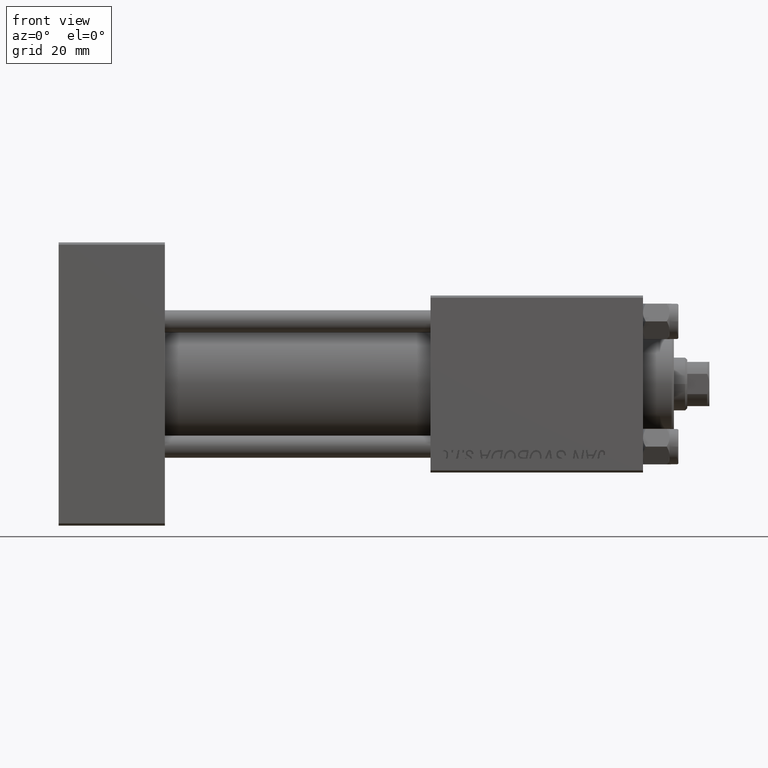
[diagram: clean part render]
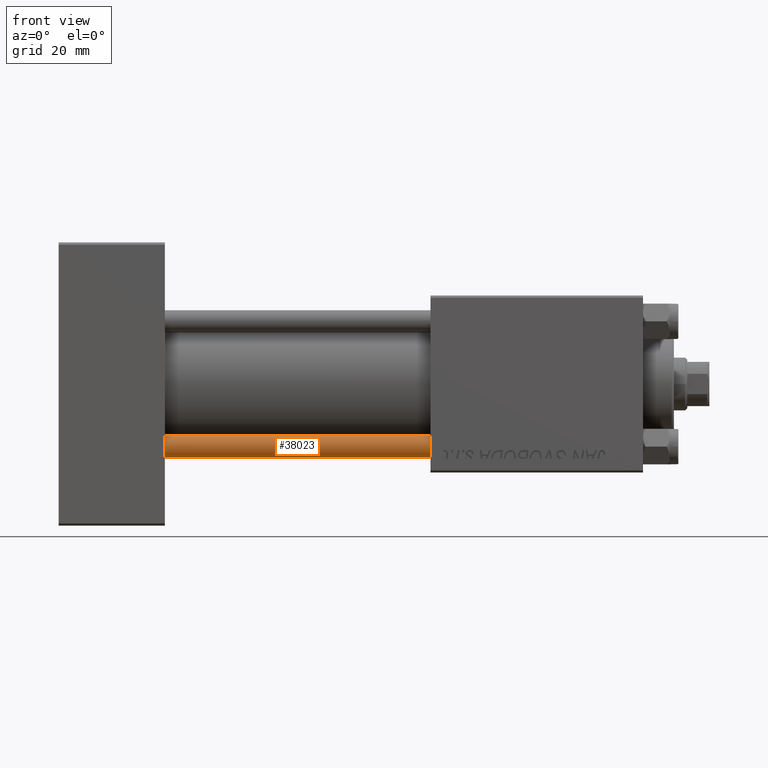
[diagram: same view with one face highlighted and labeled with its STEP entity id]
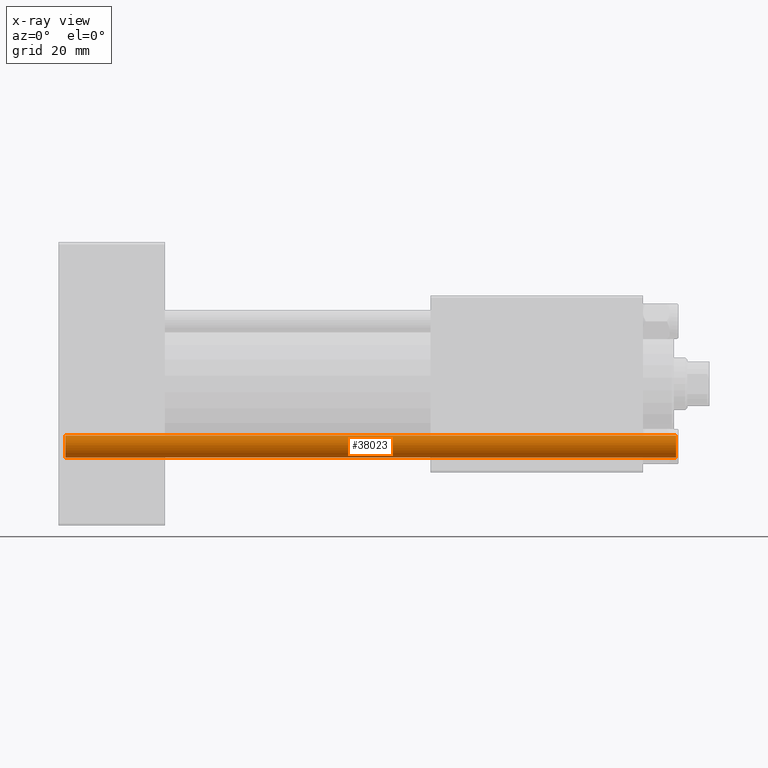
[diagram: x-ray of the same camera — body ghosted, the highlighted face saturated]
A machine part, front view. The second image highlights one B-rep face of the part: STEP entity #38023.
The next image is the same camera in x-ray: the body ghosted, the highlighted face saturated — about 0% of this face is hidden behind the body in this view.
In plain terms, the highlighted cylindrical surface (edge-blend (fillet) strip) has radius 2.5 mm, axis along (1, -0, -0).
Its self-contained STEP definition (entity closure, byte-faithful):
#3253 = CYLINDRICAL_SURFACE ( 'NONE', #16184, 2.500000000000000000 ) ;
#4289 = VERTEX_POINT ( 'NONE', #15531 ) ;
#4549 = VECTOR ( 'NONE', #20001, 1000.000000000000000 ) ;
#4597 = CARTESIAN_POINT ( 'NONE',  ( -2.500000000000000000, 0.000000000000000000, 139.0000000000000000 ) ) ;
#4831 = VERTEX_POINT ( 'NONE', #16691 ) ;
#5740 = EDGE_CURVE ( 'NONE', #4831, #4289, #39675, .T. ) ;
#5862 = AXIS2_PLACEMENT_3D ( 'NONE', #36293, #40576, #32514 ) ;
#6580 = EDGE_CURVE ( 'NONE', #12872, #13781, #35899, .T. ) ;
#10327 = EDGE_LOOP ( 'NONE', ( #18568, #22418, #37246, #40165 ) ) ;
#10352 = DIRECTION ( 'NONE',  ( 0.000000000000000000, 0.000000000000000000, -1.000000000000000000 ) ) ;
#10846 = DIRECTION ( 'NONE',  ( -0.000000000000000000, -0.000000000000000000, -1.000000000000000000 ) ) ;
#11357 = DIRECTION ( 'NONE',  ( 1.000000000000000000, 0.000000000000000000, 0.000000000000000000 ) ) ;
#12872 = VERTEX_POINT ( 'NONE', #17877 ) ;
#13781 = VERTEX_POINT ( 'NONE', #14588 ) ;
#14588 = CARTESIAN_POINT ( 'NONE',  ( -2.500000000000000000, 0.000000000000000000, 0.4999999999999726885 ) ) ;
#14868 = FACE_OUTER_BOUND ( 'NONE', #10327, .T. ) ;
#15368 = DIRECTION ( 'NONE',  ( -1.000000000000000000, 0.000000000000000000, 0.000000000000000000 ) ) ;
#15531 = CARTESIAN_POINT ( 'NONE',  ( 2.500000000000000000, 3.061616997868383141E-16, 0.4999999999999726885 ) ) ;
#16184 = AXIS2_PLACEMENT_3D ( 'NONE', #34815, #10846, #15368 ) ;
#16691 = CARTESIAN_POINT ( 'NONE',  ( 2.500000000000000000, 3.061616997868383141E-16, 138.5000000000000000 ) ) ;
#17877 = CARTESIAN_POINT ( 'NONE',  ( -2.500000000000000000, 0.000000000000000000, 138.5000000000000000 ) ) ;
#18568 = ORIENTED_EDGE ( 'NONE', *, *, #5740, .F. ) ;
#20001 = DIRECTION ( 'NONE',  ( -0.000000000000000000, -0.000000000000000000, -1.000000000000000000 ) ) ;
#22418 = ORIENTED_EDGE ( 'NONE', *, *, #49712, .T. ) ;
#22448 = CARTESIAN_POINT ( 'NONE',  ( 0.000000000000000000, 0.000000000000000000, 138.5000000000000000 ) ) ;
#22592 = EDGE_CURVE ( 'NONE', #13781, #4289, #30035, .T. ) ;
#29616 = VECTOR ( 'NONE', #43965, 1000.000000000000000 ) ;
#30035 = CIRCLE ( 'NONE', #5862, 2.500000000000000000 ) ;
#30138 = CIRCLE ( 'NONE', #35780, 2.500000000000000000 ) ;
#32514 = DIRECTION ( 'NONE',  ( 1.000000000000000000, 0.000000000000000000, 0.000000000000000000 ) ) ;
#34815 = CARTESIAN_POINT ( 'NONE',  ( 0.000000000000000000, 0.000000000000000000, 139.0000000000000000 ) ) ;
#35780 = AXIS2_PLACEMENT_3D ( 'NONE', #22448, #10352, #11357 ) ;
#35899 = LINE ( 'NONE', #4597, #29616 ) ;
#36293 = CARTESIAN_POINT ( 'NONE',  ( 0.000000000000000000, 0.000000000000000000, 0.4999999999999726885 ) ) ;
#37246 = ORIENTED_EDGE ( 'NONE', *, *, #6580, .T. ) ;
#38023 = ADVANCED_FACE ( 'NONE', ( #14868 ), #3253, .T. ) ;
#39675 = LINE ( 'NONE', #46999, #4549 ) ;
#40165 = ORIENTED_EDGE ( 'NONE', *, *, #22592, .T. ) ;
#40576 = DIRECTION ( 'NONE',  ( -0.000000000000000000, -0.000000000000000000, 1.000000000000000000 ) ) ;
#43965 = DIRECTION ( 'NONE',  ( -0.000000000000000000, -0.000000000000000000, -1.000000000000000000 ) ) ;
#46999 = CARTESIAN_POINT ( 'NONE',  ( 2.500000000000000000, 3.061616997868383141E-16, 139.0000000000000000 ) ) ;
#49712 = EDGE_CURVE ( 'NONE', #4831, #12872, #30138, .T. ) ;